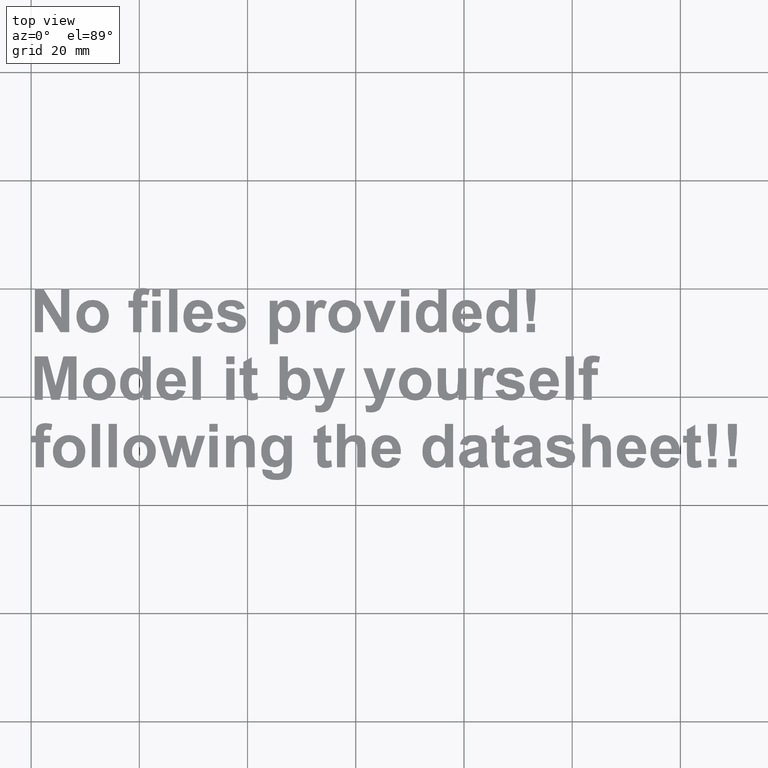
[diagram: clean part render]
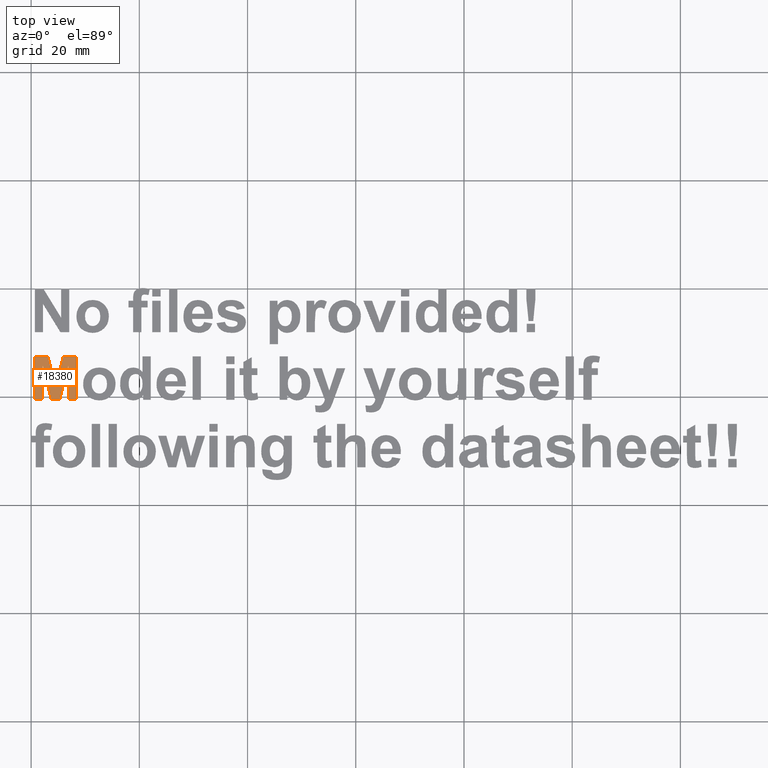
[diagram: same view with one face highlighted and labeled with its STEP entity id]
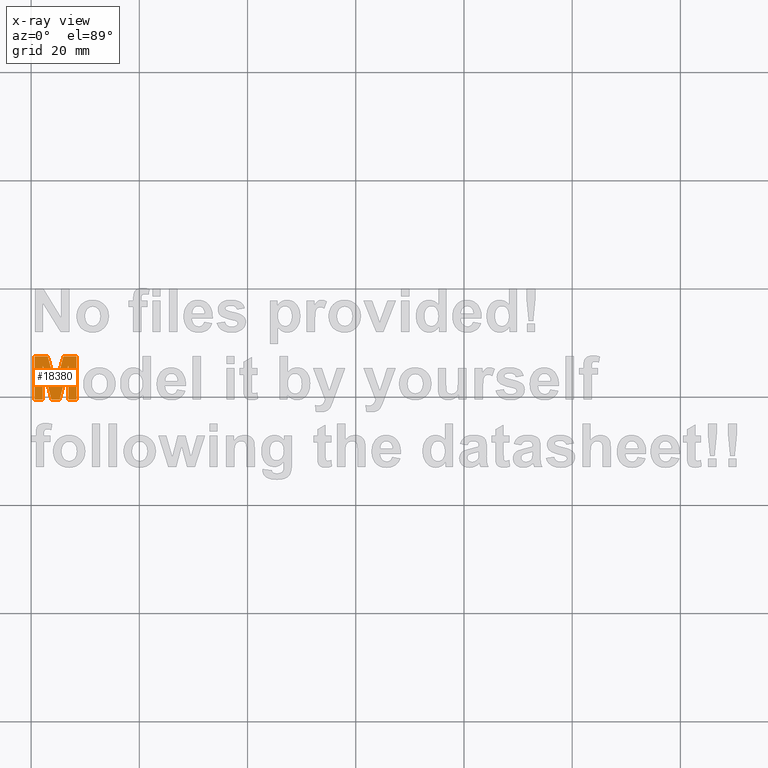
[diagram: x-ray of the same camera — body ghosted, the highlighted face saturated]
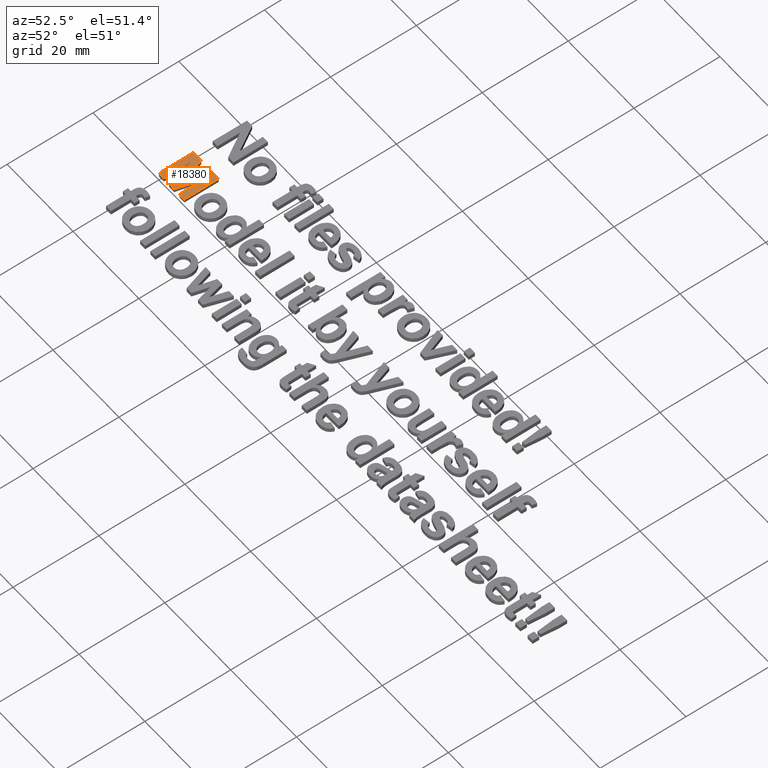
[diagram: same view with one face highlighted and labeled with its STEP entity id]
A machine part, top view. The second image highlights one B-rep face of the part: STEP entity #18380.
The next image is the same camera in x-ray: the body ghosted, the highlighted face saturated — about 0% of this face is hidden behind the body in this view.
A second angle (auxiliary view) of the same face is appended — the face is thin or edge-on in the first view.
In plain terms, the highlighted planar face has unit normal (0, 0, 1).
Its self-contained STEP definition (entity closure, byte-faithful):
#251=PLANE('',#19457);
#786=FACE_OUTER_BOUND('',#1858,.T.);
#1858=EDGE_LOOP('',(#12669,#12670,#12671,#12672,#12673,#12674,#12675,#12676,
#12677,#12678,#12679,#12680,#12681));
#3011=LINE('',#24210,#4637);
#3014=LINE('',#24216,#4640);
#3017=LINE('',#24222,#4643);
#3020=LINE('',#24228,#4646);
#3023=LINE('',#24234,#4649);
#3026=LINE('',#24240,#4652);
#3029=LINE('',#24246,#4655);
#3032=LINE('',#24252,#4658);
#3035=LINE('',#24258,#4661);
#3038=LINE('',#24264,#4664);
#3041=LINE('',#24270,#4667);
#3044=LINE('',#24276,#4670);
#3047=LINE('',#24280,#4673);
#4637=VECTOR('',#20151,10.);
#4640=VECTOR('',#20156,10.);
#4643=VECTOR('',#20161,10.);
#4646=VECTOR('',#20166,10.);
#4649=VECTOR('',#20171,10.);
#4652=VECTOR('',#20176,10.);
#4655=VECTOR('',#20181,10.);
#4658=VECTOR('',#20186,10.);
#4661=VECTOR('',#20191,10.);
#4664=VECTOR('',#20196,10.);
#4667=VECTOR('',#20201,10.);
#4670=VECTOR('',#20206,10.);
#4673=VECTOR('',#20211,10.);
#7493=VERTEX_POINT('',#24207);
#7494=VERTEX_POINT('',#24209);
#7496=VERTEX_POINT('',#24215);
#7498=VERTEX_POINT('',#24221);
#7500=VERTEX_POINT('',#24227);
#7502=VERTEX_POINT('',#24233);
#7504=VERTEX_POINT('',#24239);
#7506=VERTEX_POINT('',#24245);
#7508=VERTEX_POINT('',#24251);
#7510=VERTEX_POINT('',#24257);
#7512=VERTEX_POINT('',#24263);
#7514=VERTEX_POINT('',#24269);
#7516=VERTEX_POINT('',#24275);
#9481=EDGE_CURVE('',#7494,#7493,#3011,.T.);
#9484=EDGE_CURVE('',#7496,#7494,#3014,.T.);
#9487=EDGE_CURVE('',#7498,#7496,#3017,.T.);
#9490=EDGE_CURVE('',#7500,#7498,#3020,.T.);
#9493=EDGE_CURVE('',#7502,#7500,#3023,.T.);
#9496=EDGE_CURVE('',#7504,#7502,#3026,.T.);
#9499=EDGE_CURVE('',#7506,#7504,#3029,.T.);
#9502=EDGE_CURVE('',#7508,#7506,#3032,.T.);
#9505=EDGE_CURVE('',#7510,#7508,#3035,.T.);
#9508=EDGE_CURVE('',#7512,#7510,#3038,.T.);
#9511=EDGE_CURVE('',#7514,#7512,#3041,.T.);
#9514=EDGE_CURVE('',#7516,#7514,#3044,.T.);
#9517=EDGE_CURVE('',#7493,#7516,#3047,.T.);
#12669=ORIENTED_EDGE('',*,*,#9517,.T.);
#12670=ORIENTED_EDGE('',*,*,#9514,.T.);
#12671=ORIENTED_EDGE('',*,*,#9511,.T.);
#12672=ORIENTED_EDGE('',*,*,#9508,.T.);
#12673=ORIENTED_EDGE('',*,*,#9505,.T.);
#12674=ORIENTED_EDGE('',*,*,#9502,.T.);
#12675=ORIENTED_EDGE('',*,*,#9499,.T.);
#12676=ORIENTED_EDGE('',*,*,#9496,.T.);
#12677=ORIENTED_EDGE('',*,*,#9493,.T.);
#12678=ORIENTED_EDGE('',*,*,#9490,.T.);
#12679=ORIENTED_EDGE('',*,*,#9487,.T.);
#12680=ORIENTED_EDGE('',*,*,#9484,.T.);
#12681=ORIENTED_EDGE('',*,*,#9481,.T.);
#18380=ADVANCED_FACE('',(#786),#251,.T.);
#19457=AXIS2_PLACEMENT_3D('',#24281,#20212,#20213);
#20151=DIRECTION('',(0.,-1.,0.));
#20156=DIRECTION('',(-1.,0.,0.));
#20161=DIRECTION('',(-0.257061170209498,0.966395133871505,0.));
#20166=DIRECTION('',(-0.254350604753142,-0.967112077197732,0.));
#20171=DIRECTION('',(-1.,0.,0.));
#20176=DIRECTION('',(0.,1.,0.));
#20181=DIRECTION('',(1.,0.,0.));
#20186=DIRECTION('',(0.,-1.,0.));
#20191=DIRECTION('',(0.244512225384442,0.969646209520538,0.));
#20196=DIRECTION('',(1.,0.,0.));
#20201=DIRECTION('',(0.243721914892202,-0.969845156816942,0.));
#20206=DIRECTION('',(0.,1.,0.));
#20211=DIRECTION('',(1.,0.,0.));
#20212=DIRECTION('center_axis',(0.,0.,1.));
#20213=DIRECTION('ref_axis',(1.,0.,0.));
#24207=CARTESIAN_POINT('',(0.660300105810165,-20.4856759309769,1.));
#24209=CARTESIAN_POINT('',(0.660300105810165,-12.485676407814,1.));
#24210=CARTESIAN_POINT('',(0.660300105810165,-20.4856759309769,1.));
#24215=CARTESIAN_POINT('',(3.07776249945164,-12.485676407814,1.));
#24216=CARTESIAN_POINT('',(0.660300105810165,-12.485676407814,1.));
#24221=CARTESIAN_POINT('',(4.52933140099049,-17.9427009820938,1.));
#24222=CARTESIAN_POINT('',(3.07776249945164,-12.485676407814,1.));
#24227=CARTESIAN_POINT('',(5.96452958881855,-12.485676407814,1.));
#24228=CARTESIAN_POINT('',(4.52933140099049,-17.9427009820938,1.));
#24233=CARTESIAN_POINT('',(8.38744886219501,-12.485676407814,1.));
#24234=CARTESIAN_POINT('',(5.96452958881855,-12.485676407814,1.));
#24239=CARTESIAN_POINT('',(8.38744886219501,-20.4856759309769,1.));
#24240=CARTESIAN_POINT('',(8.38744886219501,-12.485676407814,1.));
#24245=CARTESIAN_POINT('',(6.88676662743092,-20.4856759309769,1.));
#24246=CARTESIAN_POINT('',(8.38744886219501,-20.4856759309769,1.));
#24251=CARTESIAN_POINT('',(6.88676662743092,-14.1882687807083,1.));
#24252=CARTESIAN_POINT('',(6.88676662743092,-20.4856759309769,1.));
#24257=CARTESIAN_POINT('',(5.29877193272114,-20.4856759309769,1.));
#24258=CARTESIAN_POINT('',(6.88676662743092,-14.1882687807083,1.));
#24263=CARTESIAN_POINT('',(3.7435195595026,-20.4856759309769,1.));
#24264=CARTESIAN_POINT('',(5.29877193272114,-20.4856759309769,1.));
#24269=CARTESIAN_POINT('',(2.16098226606846,-14.1882687807083,1.));
#24270=CARTESIAN_POINT('',(3.7435195595026,-20.4856759309769,1.));
#24275=CARTESIAN_POINT('',(2.16098226606846,-20.4856759309769,1.));
#24276=CARTESIAN_POINT('',(2.16098226606846,-14.1882687807083,1.));
#24280=CARTESIAN_POINT('',(2.16098226606846,-20.4856759309769,1.));
#24281=CARTESIAN_POINT('Origin',(65.2196452394128,-17.5934508442879,1.));